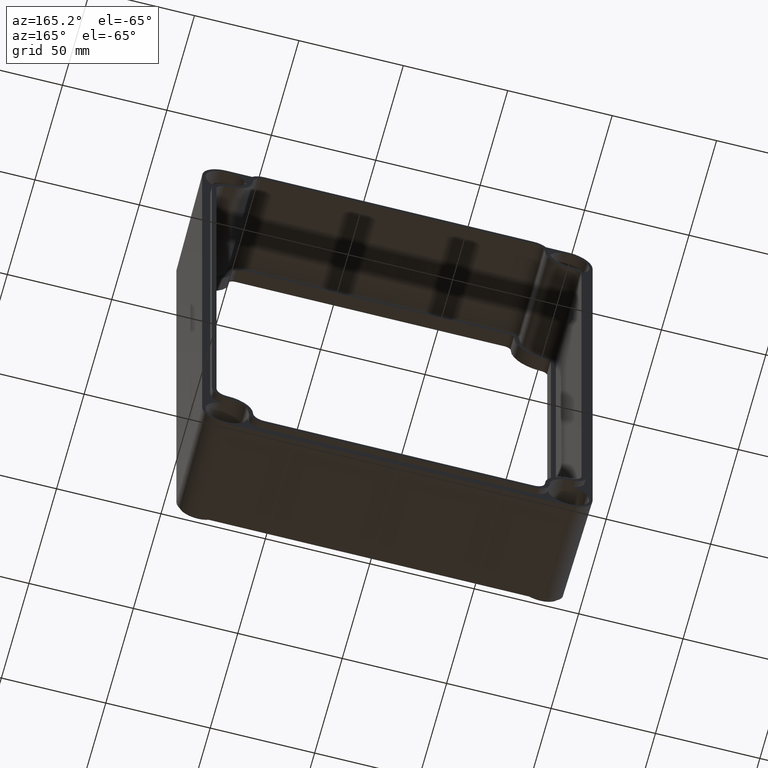
[diagram: clean part render]
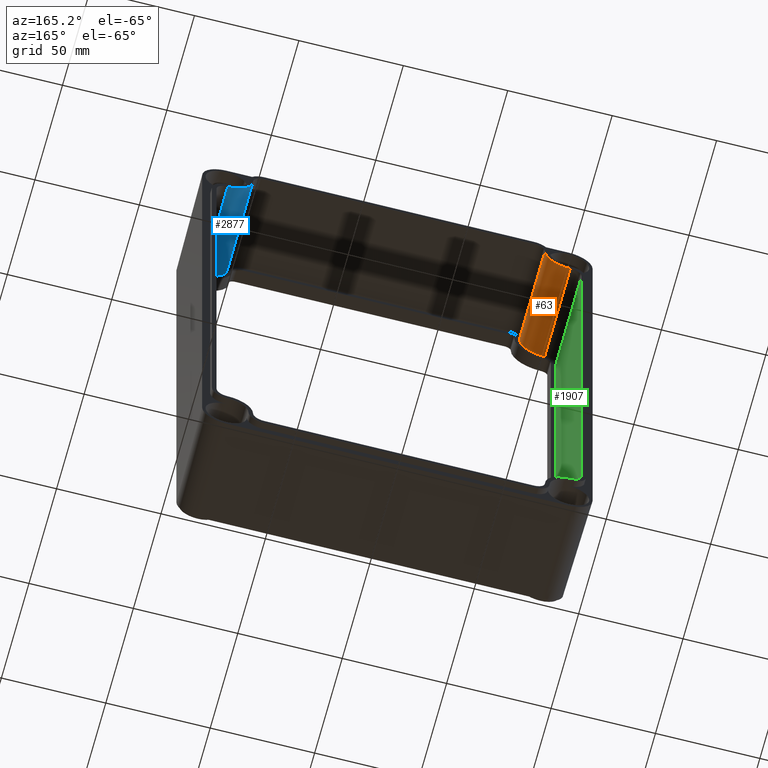
[diagram: same view with three faces highlighted in distinct colors, each labeled with its STEP entity id]
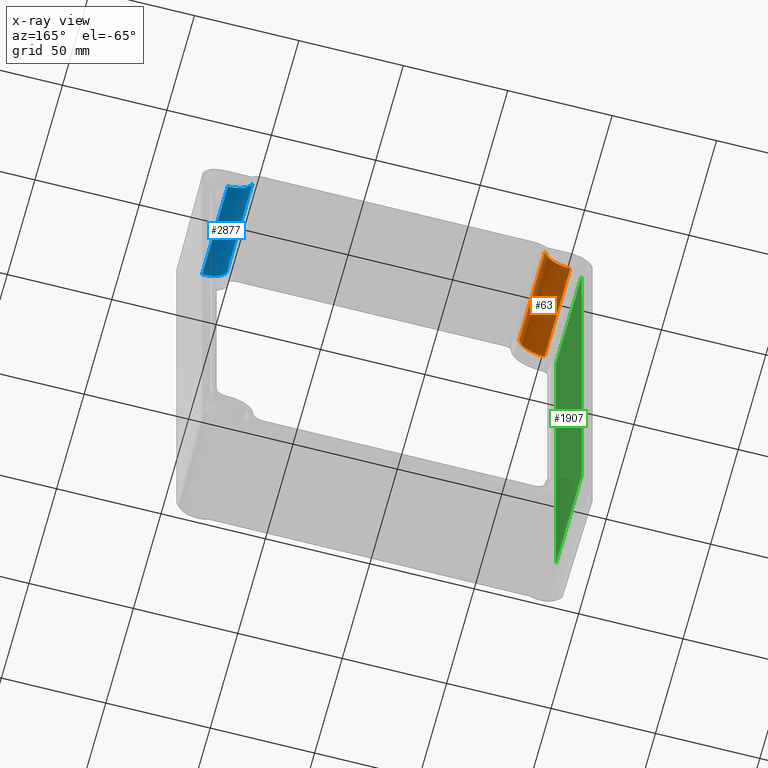
[diagram: x-ray of the same camera — body ghosted, the three highlighted faces saturated]
A machine part, auxiliary view with three faces highlighted in distinct colors.
The next image is the same camera in x-ray (body ghosted, the three faces saturated) — at least one of them is partly hidden behind the body in this view.
Their STEP definitions:

[orange] entity #63 — the highlighted cylindrical surface (edge-blend (fillet) strip) has radius 12.1 mm, axis along (-0, -1, -0).
#22 = VERTEX_POINT ( 'NONE', #254 ) ;
#63 = ADVANCED_FACE ( 'NONE', ( #1855 ), #2345, .T. ) ;
#66 = EDGE_CURVE ( 'NONE', #770, #22, #1002, .T. ) ;
#83 = EDGE_CURVE ( 'NONE', #2656, #1962, #2206, .T. ) ;
#196 = ORIENTED_EDGE ( 'NONE', *, *, #83, .T. ) ;
#254 = CARTESIAN_POINT ( 'NONE',  ( -82.00000000000001400, -43.49999999999998600, 114.9000000000000100 ) ) ;
#280 = EDGE_CURVE ( 'NONE', #1962, #22, #932, .T. ) ;
#315 = CIRCLE ( 'NONE', #2327, 12.10000000000000000 ) ;
#412 = DIRECTION ( 'NONE',  ( 0.0000000000000000000, 0.0000000000000000000, 1.000000000000000000 ) ) ;
#482 = CARTESIAN_POINT ( 'NONE',  ( -69.89999999999999100, 3.000000000000000000, 127.0000000000000000 ) ) ;
#587 = CARTESIAN_POINT ( 'NONE',  ( -82.00000000000001400, 3.000000000000000000, 114.9000000000000100 ) ) ;
#717 = DIRECTION ( 'NONE',  ( -0.0000000000000000000, -1.000000000000000000, -0.0000000000000000000 ) ) ;
#770 = VERTEX_POINT ( 'NONE', #587 ) ;
#932 = CIRCLE ( 'NONE', #1603, 12.10000000000000000 ) ;
#969 = ORIENTED_EDGE ( 'NONE', *, *, #2682, .T. ) ;
#1002 = LINE ( 'NONE', #1839, #1322 ) ;
#1254 = VECTOR ( 'NONE', #717, 1000.000000000000000 ) ;
#1322 = VECTOR ( 'NONE', #2313, 1000.000000000000000 ) ;
#1364 = CARTESIAN_POINT ( 'NONE',  ( -82.00000000000001400, -43.49999999999998600, 127.0000000000000000 ) ) ;
#1486 = ORIENTED_EDGE ( 'NONE', *, *, #66, .F. ) ;
#1561 = ORIENTED_EDGE ( 'NONE', *, *, #280, .T. ) ;
#1603 = AXIS2_PLACEMENT_3D ( 'NONE', #1364, #2952, #412 ) ;
#1656 = CARTESIAN_POINT ( 'NONE',  ( -69.89999999999999100, 3.000000000000000000, 127.0000000000000000 ) ) ;
#1742 = DIRECTION ( 'NONE',  ( 0.0000000000000000000, -1.000000000000000000, 0.0000000000000000000 ) ) ;
#1768 = CARTESIAN_POINT ( 'NONE',  ( -69.90000000000000600, -43.49999999999998600, 127.0000000000000000 ) ) ;
#1839 = CARTESIAN_POINT ( 'NONE',  ( -82.00000000000001400, 3.000000000000000000, 114.9000000000000100 ) ) ;
#1855 = FACE_OUTER_BOUND ( 'NONE', #2715, .T. ) ;
#1962 = VERTEX_POINT ( 'NONE', #1768 ) ;
#2065 = DIRECTION ( 'NONE',  ( -0.0000000000000000000, -1.000000000000000000, -0.0000000000000000000 ) ) ;
#2077 = DIRECTION ( 'NONE',  ( 0.0000000000000000000, 0.0000000000000000000, -1.000000000000000000 ) ) ;
#2172 = CARTESIAN_POINT ( 'NONE',  ( -82.00000000000001400, 3.000000000000000000, 127.0000000000000000 ) ) ;
#2206 = LINE ( 'NONE', #482, #1254 ) ;
#2313 = DIRECTION ( 'NONE',  ( -0.0000000000000000000, -1.000000000000000000, -0.0000000000000000000 ) ) ;
#2327 = AXIS2_PLACEMENT_3D ( 'NONE', #2172, #1742, #2872 ) ;
#2345 = CYLINDRICAL_SURFACE ( 'NONE', #2880, 12.10000000000000000 ) ;
#2656 = VERTEX_POINT ( 'NONE', #1656 ) ;
#2682 = EDGE_CURVE ( 'NONE', #770, #2656, #315, .T. ) ;
#2715 = EDGE_LOOP ( 'NONE', ( #196, #1561, #1486, #969 ) ) ;
#2750 = CARTESIAN_POINT ( 'NONE',  ( -82.00000000000001400, 3.000000000000000000, 127.0000000000000000 ) ) ;
#2872 = DIRECTION ( 'NONE',  ( 0.0000000000000000000, 0.0000000000000000000, -1.000000000000000000 ) ) ;
#2880 = AXIS2_PLACEMENT_3D ( 'NONE', #2750, #2065, #2077 ) ;
#2952 = DIRECTION ( 'NONE',  ( 0.0000000000000000000, 1.000000000000000000, 0.0000000000000000000 ) ) ;

[blue] entity #2877 — the highlighted cylindrical surface (edge-blend (fillet) strip) has radius 12.1 mm, axis along (-0, -1, -0).
#54 = ORIENTED_EDGE ( 'NONE', *, *, #1773, .T. ) ;
#156 = AXIS2_PLACEMENT_3D ( 'NONE', #2833, #159, #1521 ) ;
#159 = DIRECTION ( 'NONE',  ( 0.0000000000000000000, 1.000000000000000000, 0.0000000000000000000 ) ) ;
#401 = VERTEX_POINT ( 'NONE', #2527 ) ;
#409 = DIRECTION ( 'NONE',  ( -0.0000000000000000000, -1.000000000000000000, -0.0000000000000000000 ) ) ;
#565 = CARTESIAN_POINT ( 'NONE',  ( 69.89999999999999100, -43.49999999999998600, 126.9999999999999700 ) ) ;
#790 = CARTESIAN_POINT ( 'NONE',  ( 82.00000000000001400, 3.000000000000000000, 127.0000000000000000 ) ) ;
#832 = ORIENTED_EDGE ( 'NONE', *, *, #1244, .T. ) ;
#1010 = DIRECTION ( 'NONE',  ( -0.0000000000000000000, -1.000000000000000000, -0.0000000000000000000 ) ) ;
#1054 = ORIENTED_EDGE ( 'NONE', *, *, #1720, .T. ) ;
#1121 = VERTEX_POINT ( 'NONE', #565 ) ;
#1244 = EDGE_CURVE ( 'NONE', #1687, #401, #2256, .T. ) ;
#1285 = LINE ( 'NONE', #1333, #1815 ) ;
#1333 = CARTESIAN_POINT ( 'NONE',  ( 69.89999999999999100, 3.000000000000000000, 126.9999999999999700 ) ) ;
#1338 = VECTOR ( 'NONE', #2618, 1000.000000000000000 ) ;
#1521 = DIRECTION ( 'NONE',  ( 0.0000000000000000000, 0.0000000000000000000, 1.000000000000000000 ) ) ;
#1548 = EDGE_LOOP ( 'NONE', ( #832, #54, #1604, #1054 ) ) ;
#1604 = ORIENTED_EDGE ( 'NONE', *, *, #2862, .F. ) ;
#1667 = FACE_OUTER_BOUND ( 'NONE', #1548, .T. ) ;
#1687 = VERTEX_POINT ( 'NONE', #2170 ) ;
#1720 = EDGE_CURVE ( 'NONE', #2890, #1687, #2346, .T. ) ;
#1773 = EDGE_CURVE ( 'NONE', #401, #1121, #2273, .T. ) ;
#1780 = DIRECTION ( 'NONE',  ( -0.0000000000000000000, -1.000000000000000000, -0.0000000000000000000 ) ) ;
#1815 = VECTOR ( 'NONE', #409, 1000.000000000000000 ) ;
#1998 = DIRECTION ( 'NONE',  ( 0.0000000000000000000, 0.0000000000000000000, -1.000000000000000000 ) ) ;
#2170 = CARTESIAN_POINT ( 'NONE',  ( 82.00000000000002800, 3.000000000000000000, 114.8999999999999600 ) ) ;
#2230 = CARTESIAN_POINT ( 'NONE',  ( 82.00000000000001400, 3.000000000000000000, 127.0000000000000000 ) ) ;
#2242 = CARTESIAN_POINT ( 'NONE',  ( 69.89999999999999100, 3.000000000000000000, 126.9999999999999700 ) ) ;
#2252 = AXIS2_PLACEMENT_3D ( 'NONE', #790, #1010, #2607 ) ;
#2256 = LINE ( 'NONE', #2413, #1338 ) ;
#2273 = CIRCLE ( 'NONE', #156, 12.10000000000002800 ) ;
#2346 = CIRCLE ( 'NONE', #2252, 12.10000000000002800 ) ;
#2413 = CARTESIAN_POINT ( 'NONE',  ( 82.00000000000002800, 3.000000000000000000, 114.8999999999999600 ) ) ;
#2527 = CARTESIAN_POINT ( 'NONE',  ( 82.00000000000004300, -43.49999999999998600, 114.8999999999999800 ) ) ;
#2607 = DIRECTION ( 'NONE',  ( 0.0000000000000000000, 0.0000000000000000000, 1.000000000000000000 ) ) ;
#2618 = DIRECTION ( 'NONE',  ( -0.0000000000000000000, -1.000000000000000000, -0.0000000000000000000 ) ) ;
#2657 = CYLINDRICAL_SURFACE ( 'NONE', #2893, 12.10000000000002800 ) ;
#2833 = CARTESIAN_POINT ( 'NONE',  ( 82.00000000000001400, -43.49999999999998600, 127.0000000000000000 ) ) ;
#2862 = EDGE_CURVE ( 'NONE', #2890, #1121, #1285, .T. ) ;
#2877 = ADVANCED_FACE ( 'NONE', ( #1667 ), #2657, .T. ) ;
#2890 = VERTEX_POINT ( 'NONE', #2242 ) ;
#2893 = AXIS2_PLACEMENT_3D ( 'NONE', #2230, #1780, #1998 ) ;

[green] entity #1907 — the highlighted planar face has unit normal (1, -0, 0).
#253 = ORIENTED_EDGE ( 'NONE', *, *, #2377, .T. ) ;
#267 = AXIS2_PLACEMENT_3D ( 'NONE', #857, #1306, #1729 ) ;
#346 = CARTESIAN_POINT ( 'NONE',  ( -87.39999999999992000, 3.000000000000000000, -109.5000000000000600 ) ) ;
#390 = DIRECTION ( 'NONE',  ( -0.0000000000000000000, -1.000000000000000000, -0.0000000000000000000 ) ) ;
#394 = LINE ( 'NONE', #2464, #1990 ) ;
#499 = VECTOR ( 'NONE', #390, 1000.000000000000000 ) ;
#549 = FACE_OUTER_BOUND ( 'NONE', #1164, .T. ) ;
#850 = PLANE ( 'NONE',  #267 ) ;
#855 = LINE ( 'NONE', #1375, #2289 ) ;
#857 = CARTESIAN_POINT ( 'NONE',  ( -87.39999999999992000, 3.000000000000000000, -109.5000000000000600 ) ) ;
#922 = EDGE_CURVE ( 'NONE', #1424, #2041, #855, .T. ) ;
#1003 = LINE ( 'NONE', #1044, #2138 ) ;
#1009 = ORIENTED_EDGE ( 'NONE', *, *, #2920, .F. ) ;
#1044 = CARTESIAN_POINT ( 'NONE',  ( -87.39999999999994900, -43.49999999999998600, -109.5000000000000600 ) ) ;
#1164 = EDGE_LOOP ( 'NONE', ( #1331, #1930, #1009, #253 ) ) ;
#1306 = DIRECTION ( 'NONE',  ( 1.000000000000000000, -0.0000000000000000000, 3.168444704980468600E-016 ) ) ;
#1331 = ORIENTED_EDGE ( 'NONE', *, *, #922, .T. ) ;
#1375 = CARTESIAN_POINT ( 'NONE',  ( -87.40000000000000600, 3.000000000000000000, 109.5000000000000400 ) ) ;
#1424 = VERTEX_POINT ( 'NONE', #2714 ) ;
#1556 = DIRECTION ( 'NONE',  ( -0.0000000000000000000, -1.000000000000000000, -0.0000000000000000000 ) ) ;
#1615 = CARTESIAN_POINT ( 'NONE',  ( -87.40000000000000600, -43.49999999999998600, 109.5000000000000600 ) ) ;
#1729 = DIRECTION ( 'NONE',  ( 3.168444704980468600E-016, 0.0000000000000000000, -1.000000000000000000 ) ) ;
#1755 = VERTEX_POINT ( 'NONE', #346 ) ;
#1792 = CARTESIAN_POINT ( 'NONE',  ( -87.39999999999992000, 3.000000000000000000, -109.5000000000000600 ) ) ;
#1867 = EDGE_CURVE ( 'NONE', #2041, #2185, #1003, .T. ) ;
#1907 = ADVANCED_FACE ( 'NONE', ( #549 ), #850, .T. ) ;
#1930 = ORIENTED_EDGE ( 'NONE', *, *, #1867, .T. ) ;
#1990 = VECTOR ( 'NONE', #2484, 1000.000000000000000 ) ;
#2041 = VERTEX_POINT ( 'NONE', #1615 ) ;
#2138 = VECTOR ( 'NONE', #2421, 1000.000000000000000 ) ;
#2185 = VERTEX_POINT ( 'NONE', #2547 ) ;
#2231 = LINE ( 'NONE', #1792, #499 ) ;
#2289 = VECTOR ( 'NONE', #1556, 1000.000000000000000 ) ;
#2377 = EDGE_CURVE ( 'NONE', #1755, #1424, #394, .T. ) ;
#2421 = DIRECTION ( 'NONE',  ( 2.534755763984375300E-016, 0.0000000000000000000, -1.000000000000000000 ) ) ;
#2464 = CARTESIAN_POINT ( 'NONE',  ( -87.39999999999992000, 3.000000000000000000, -109.5000000000000600 ) ) ;
#2484 = DIRECTION ( 'NONE',  ( -3.168444704980468600E-016, 0.0000000000000000000, 1.000000000000000000 ) ) ;
#2547 = CARTESIAN_POINT ( 'NONE',  ( -87.39999999999994900, -43.50000000000009200, -109.5000000000000600 ) ) ;
#2714 = CARTESIAN_POINT ( 'NONE',  ( -87.40000000000000600, 3.000000000000000000, 109.5000000000000400 ) ) ;
#2920 = EDGE_CURVE ( 'NONE', #1755, #2185, #2231, .T. ) ;